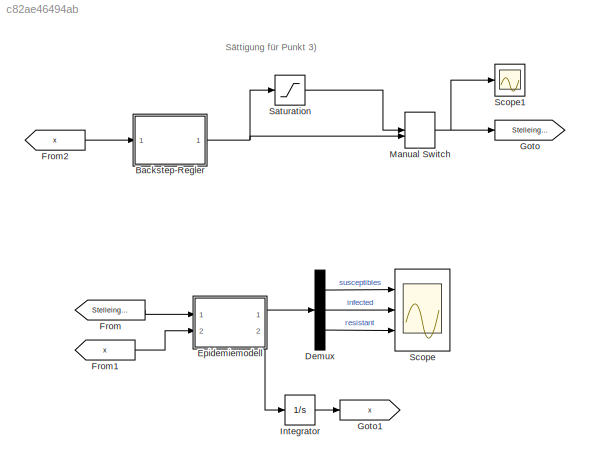
MODEL slx_c82ae46494ab
KIND model
CONFIG AbsTol = auto
CONFIG EnableMultiTasking = off
CONFIG FixedStep = auto
CONFIG MaxStep = auto
CONFIG MinStep = auto
CONFIG RelTol = 1e-3
CONFIG SampleTimeConstraint = Unconstrained
CONFIG SolverName = VariableStepAuto
CONFIG StartTime = 0.0
CONFIG StopTime = 1000
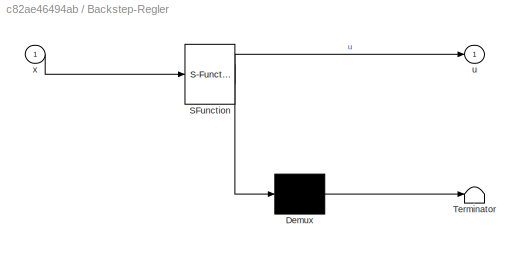
BLOCK [SubSystem] Backstep-Regler
  ErrorFcn = Stateflow.Translate.translate
  PermitHierarchicalResolution = ExplicitOnly
  Ports = [1, 1]
  RequestExecContextInheritance = off
  SFBlockType = MATLAB Function
  TreatAsAtomicUnit = on
BLOCK [Demux] Backstep-Regler/ Demux 
  Outputs = 1
  Ports = [1, 1]
BLOCK [S-Function] Backstep-Regler/ SFunction 
  EnableBusSupport = on
  FunctionName = sf_sfun
  Parameters = parSys
  PortCounts = [1 2]
  Ports = [1, 2]
  SFcnIsStateOwnerBlock = off
  SFunctionDeploymentMode = off
  Tag = Stateflow S-Function 1
BLOCK [Terminator] Backstep-Regler/ Terminator 
BLOCK [Outport] Backstep-Regler/u
BLOCK [Inport] Backstep-Regler/x
BLOCK [Demux] Demux
  Outputs = 3
  Ports = [1, 3]
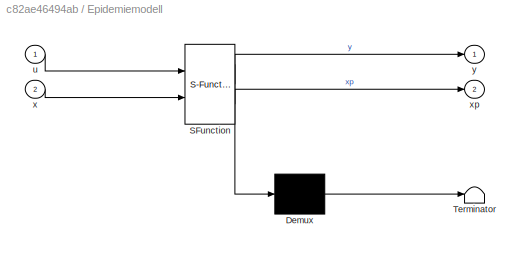
BLOCK [SubSystem] Epidemiemodell
  ErrorFcn = Stateflow.Translate.translate
  PermitHierarchicalResolution = ExplicitOnly
  Ports = [2, 2]
  RequestExecContextInheritance = off
  SFBlockType = MATLAB Function
  TreatAsAtomicUnit = on
BLOCK [Demux] Epidemiemodell/ Demux 
  Outputs = 1
  Ports = [1, 1]
BLOCK [S-Function] Epidemiemodell/ SFunction 
  EnableBusSupport = on
  FunctionName = sf_sfun
  Parameters = parSys
  PortCounts = [2 3]
  Ports = [2, 3]
  SFcnIsStateOwnerBlock = off
  SFunctionDeploymentMode = off
  Tag = Stateflow S-Function 2
BLOCK [Terminator] Epidemiemodell/ Terminator 
BLOCK [Inport] Epidemiemodell/u
BLOCK [Inport] Epidemiemodell/x
  Port = 2
BLOCK [Outport] Epidemiemodell/xp
  Port = 2
BLOCK [Outport] Epidemiemodell/y
BLOCK [From] From
  GotoTag = Stelleingang
BLOCK [From] From1
  GotoTag = x
BLOCK [From] From2
  GotoTag = x
BLOCK [Goto] Goto
  GotoTag = Stelleingang
BLOCK [Goto] Goto1
  GotoTag = x
BLOCK [Integrator] Integrator
  InitialCondition = [parSys.i_0,parSys.r_0]
  Ports = [1, 1]
BLOCK [ManualSwitch] Manual Switch
  CurrentSetting = 0
BLOCK [Saturate] Saturation
  LowerLimit = 0
  UpperLimit = 0.1
BLOCK [Scope] Scope
  Floating = off
  NumInputPorts = 3
  Ports = [3]
  ScopeSpecificationString = Simulink.scopes.TimeScopeBlockCfg('CurrentConfiguration', extmgr.ConfigurationSet(extmgr.Configuration('Core','General UI',true),extmgr.Configuration('Core','Source UI',true),extmgr.Configuration('Sources','WiredSimulink',true),extmgr.Configuration('Visuals','Time Domain',true,'SerializedDisplays',{struct('MinYLimReal','-0.12487','MaxYLimReal','1.12387','YLabelReal','','MinYLimMag','0.00000','MaxY...<+1478ch>
BLOCK [Scope] Scope1
  Floating = off
  NumInputPorts = 1
  Ports = [1]
  ScopeSpecificationString = Simulink.scopes.TimeScopeBlockCfg('CurrentConfiguration', extmgr.ConfigurationSet(extmgr.Configuration('Core','General UI',true),extmgr.Configuration('Core','Source UI',true),extmgr.Configuration('Sources','WiredSimulink',true,'DataLoggingVariableName','ScopeData1'),extmgr.Configuration('Visuals','Time Domain',true,'SerializedDisplays',{struct('MinYLimReal','-0.0779','MaxYLimReal','0.77014','YLabe...<+1396ch>
ANNOTATION (root): Sättigung für Punkt 3)
NET Backstep-Regler:1 -> Manual Switch:2, Saturation:1
LINE Demux:1 -> Scope:1
LINE Demux:2 -> Scope:2
LINE Demux:3 -> Scope:3
LINE Epidemiemodell:1 -> Demux:1
LINE Epidemiemodell:2 -> Integrator:1
LINE From1:1 -> Epidemiemodell:2
LINE From2:1 -> Backstep-Regler:1
LINE From:1 -> Epidemiemodell:1
LINE Integrator:1 -> Goto1:1
NET Manual Switch:1 -> Goto:1, Scope1:1
LINE Saturation:1 -> Manual Switch:1
note: NET lines group one-source signal fan-out (src -> all destinations, sorted); 1:1 wires keep LINE
CHART Backstep-Regler states=1 transitions=1
  STATE_LABEL 'eML_blk_kernel()'
  STATE_LABEL 'SCRIPT:\nfunction u = fcn(x,parSys)\n% Input\ni = x(1);\nr = x(2);\n\n% Par structure\npar_beta = parSys.beta;\npar_gamma = parSys.gamma;\npar_delta = parSys.delta;\n\nc1 = parSys.c1;\nc2 = parSys.c2;\nc = parSys.c;\n\n\n%u = (i * (r - 1) * par_beta ^ 2 + ((-i - r + 2) * k1 + par_delta * r) * par_beta - 2 * k1 * par_gamma) / par_beta;\n%u = ((-0.98e0 + r) * i * par_beta ^ 2 + ((-0.1e1 * i - 0.1e1 * r + 0.2e1) * k1...<+582ch>'
CHART Epidemiemodell states=1 transitions=1
  STATE_LABEL 'eML_blk_kernel()'
  STATE_LABEL 'SCRIPT:\nfunction [y,xp]= fcn(u,x, parSys)\n\nxp = zeros(2,1);\ny = zeros(3,1);\n% Parameter holen\nbeta = parSys.beta;\ngamma = parSys.gamma;\ndelta = parSys.delta;\n\n\nxp(1) = beta*x(1)*(1-x(1)-x(2))-gamma*x(1); % x(1) = i\nxp(2) = gamma*x(1)-delta*x(2)+u;\n\ny(1) = 1-x(1)-x(2);\ny(2) = x(1);\ny(3) = x(2);\n'
CHART  states=0 transitions=0
CHART  states=0 transitions=0
